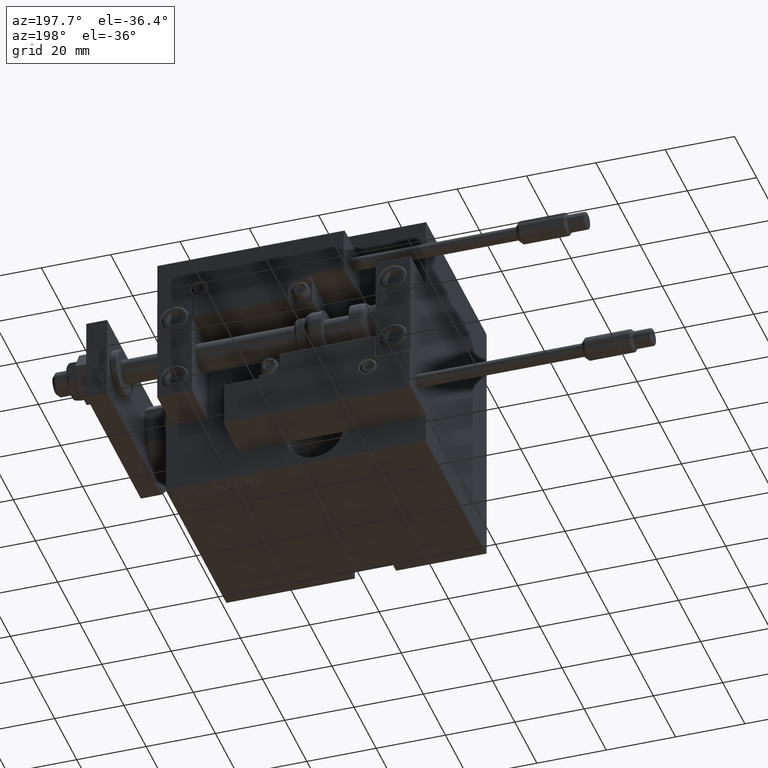
[diagram: clean part render]
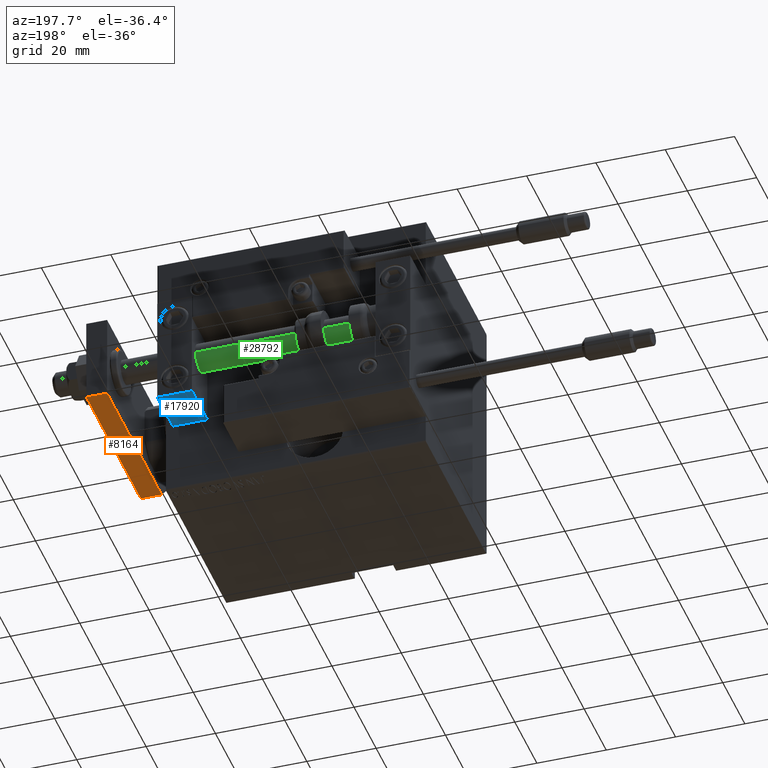
[diagram: same view with three faces highlighted in distinct colors, each labeled with its STEP entity id]
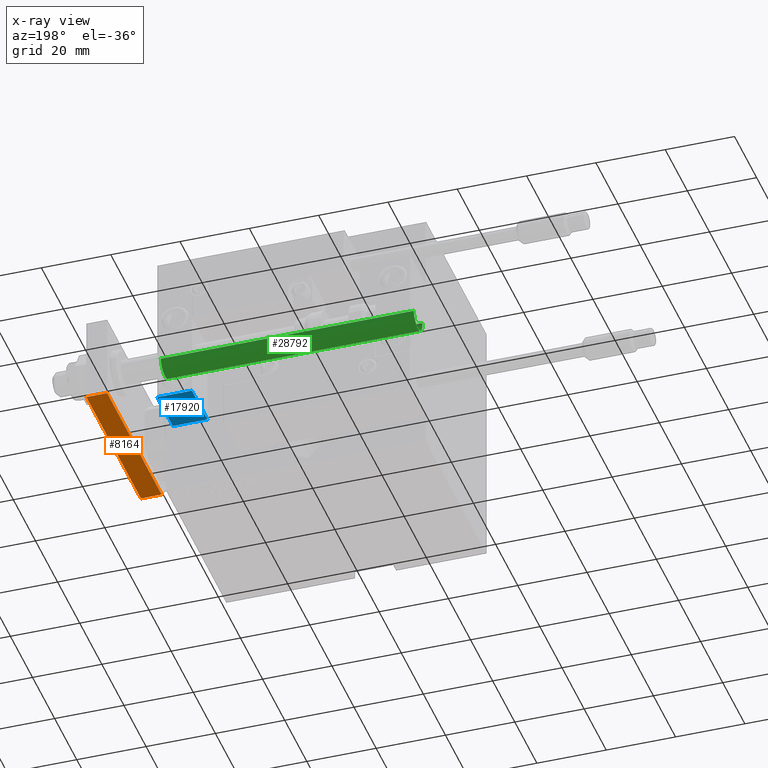
[diagram: x-ray of the same camera — body ghosted, the three highlighted faces saturated]
A machine part, auxiliary view with three faces highlighted in distinct colors.
The next image is the same camera in x-ray (body ghosted, the three faces saturated) — at least one of them is partly hidden behind the body in this view.
Their STEP definitions:

[orange] entity #8164 — the highlighted planar face has unit normal (0, -0, 1).
#1013 = EDGE_CURVE ( 'NONE', #26772, #5129, #43811, .T. ) ;
#2354 = ORIENTED_EDGE ( 'NONE', *, *, #23166, .F. ) ;
#5129 = VERTEX_POINT ( 'NONE', #35300 ) ;
#6473 = CARTESIAN_POINT ( 'NONE',  ( 12.50000000000000355, 4.814824860968089633E-32, 0.000000000000000000 ) ) ;
#8164 = ADVANCED_FACE ( 'NONE', ( #20173 ), #31723, .F. ) ;
#8354 = CARTESIAN_POINT ( 'NONE',  ( 12.50000000000000355, 4.814824860968089633E-32, 6.000000000000000000 ) ) ;
#8930 = VECTOR ( 'NONE', #47669, 1000.000000000000000 ) ;
#9680 = CARTESIAN_POINT ( 'NONE',  ( 12.50000000000000355, 4.814824860968089633E-32, 6.000000000000000000 ) ) ;
#10216 = EDGE_LOOP ( 'NONE', ( #2354, #28500, #40275, #49395 ) ) ;
#11198 = CARTESIAN_POINT ( 'NONE',  ( 12.50000000000000355, 5.659999999999991260, 6.000000000000000000 ) ) ;
#12374 = DIRECTION ( 'NONE',  ( -1.000000000000000000, -6.308085367188389994E-17, 0.000000000000000000 ) ) ;
#12998 = DIRECTION ( 'NONE',  ( 0.000000000000000000, 0.000000000000000000, -1.000000000000000000 ) ) ;
#13865 = DIRECTION ( 'NONE',  ( -0.000000000000000000, -0.000000000000000000, -1.000000000000000000 ) ) ;
#18010 = VECTOR ( 'NONE', #29113, 1000.000000000000000 ) ;
#20061 = CARTESIAN_POINT ( 'NONE',  ( 12.50000000000000000, 55.00000000000000000, 6.000000000000000000 ) ) ;
#20173 = FACE_OUTER_BOUND ( 'NONE', #10216, .T. ) ;
#20333 = CARTESIAN_POINT ( 'NONE',  ( 12.50000000000000355, 5.659999999999991260, 0.000000000000000000 ) ) ;
#23067 = AXIS2_PLACEMENT_3D ( 'NONE', #8354, #12374, #32207 ) ;
#23166 = EDGE_CURVE ( 'NONE', #37000, #26772, #48172, .T. ) ;
#24430 = CARTESIAN_POINT ( 'NONE',  ( 12.50000000000000000, 55.00000000000000000, 6.000000000000000000 ) ) ;
#26772 = VERTEX_POINT ( 'NONE', #20061 ) ;
#27622 = LINE ( 'NONE', #32360, #28338 ) ;
#28338 = VECTOR ( 'NONE', #12998, 1000.000000000000000 ) ;
#28500 = ORIENTED_EDGE ( 'NONE', *, *, #31709, .T. ) ;
#29113 = DIRECTION ( 'NONE',  ( -6.308085367188389994E-17, 1.000000000000000000, 0.000000000000000000 ) ) ;
#31709 = EDGE_CURVE ( 'NONE', #37000, #34521, #27622, .T. ) ;
#31723 = PLANE ( 'NONE',  #23067 ) ;
#32207 = DIRECTION ( 'NONE',  ( 6.308085367188389994E-17, -1.000000000000000000, 0.000000000000000000 ) ) ;
#32360 = CARTESIAN_POINT ( 'NONE',  ( 12.50000000000000355, 5.659999999999991260, 6.000000000000000000 ) ) ;
#33766 = EDGE_CURVE ( 'NONE', #34521, #5129, #33875, .T. ) ;
#33875 = LINE ( 'NONE', #6473, #18010 ) ;
#34521 = VERTEX_POINT ( 'NONE', #20333 ) ;
#35300 = CARTESIAN_POINT ( 'NONE',  ( 12.50000000000000000, 55.00000000000000000, 0.000000000000000000 ) ) ;
#37000 = VERTEX_POINT ( 'NONE', #11198 ) ;
#37021 = VECTOR ( 'NONE', #13865, 1000.000000000000000 ) ;
#40275 = ORIENTED_EDGE ( 'NONE', *, *, #33766, .T. ) ;
#43811 = LINE ( 'NONE', #24430, #37021 ) ;
#47669 = DIRECTION ( 'NONE',  ( -6.308085367188389994E-17, 1.000000000000000000, 0.000000000000000000 ) ) ;
#48172 = LINE ( 'NONE', #9680, #8930 ) ;
#49395 = ORIENTED_EDGE ( 'NONE', *, *, #1013, .F. ) ;

[blue] entity #17920 — the highlighted planar face has unit normal (0, 0, -1).
#2396 = CARTESIAN_POINT ( 'NONE',  ( 0.000000000000000000, 7.000000000000000000, -16.00000000000000711 ) ) ;
#3403 = EDGE_CURVE ( 'NONE', #19265, #14861, #34974, .T. ) ;
#4494 = DIRECTION ( 'NONE',  ( 0.000000000000000000, 0.000000000000000000, -1.000000000000000000 ) ) ;
#6174 = ORIENTED_EDGE ( 'NONE', *, *, #31217, .T. ) ;
#7529 = CARTESIAN_POINT ( 'NONE',  ( 10.00000000000000000, 7.000000000000000000, -16.00000000000000711 ) ) ;
#7944 = CARTESIAN_POINT ( 'NONE',  ( 10.00000000000000000, -7.000000000000000000, -16.00000000000000711 ) ) ;
#8065 = EDGE_CURVE ( 'NONE', #23841, #19265, #24173, .T. ) ;
#12541 = CARTESIAN_POINT ( 'NONE',  ( 10.00000000000000000, 7.000000000000000000, -16.00000000000000711 ) ) ;
#14432 = CARTESIAN_POINT ( 'NONE',  ( 10.00000000000000000, 7.000000000000000000, -16.00000000000000711 ) ) ;
#14861 = VERTEX_POINT ( 'NONE', #22642 ) ;
#16074 = PLANE ( 'NONE',  #31225 ) ;
#16434 = DIRECTION ( 'NONE',  ( -1.000000000000000000, -0.000000000000000000, -0.000000000000000000 ) ) ;
#17920 = ADVANCED_FACE ( 'NONE', ( #39455 ), #16074, .T. ) ;
#18271 = CARTESIAN_POINT ( 'NONE',  ( 0.000000000000000000, 7.000000000000000000, -16.00000000000000711 ) ) ;
#19265 = VERTEX_POINT ( 'NONE', #2396 ) ;
#22356 = LINE ( 'NONE', #7529, #23604 ) ;
#22642 = CARTESIAN_POINT ( 'NONE',  ( 0.000000000000000000, -7.000000000000000000, -16.00000000000000711 ) ) ;
#23604 = VECTOR ( 'NONE', #49293, 1000.000000000000000 ) ;
#23841 = VERTEX_POINT ( 'NONE', #14432 ) ;
#24173 = LINE ( 'NONE', #31969, #48783 ) ;
#24202 = CARTESIAN_POINT ( 'NONE',  ( 10.00000000000000000, -7.000000000000000000, -16.00000000000000711 ) ) ;
#26781 = EDGE_LOOP ( 'NONE', ( #37611, #36655, #6174, #30483 ) ) ;
#27849 = VERTEX_POINT ( 'NONE', #7944 ) ;
#27891 = DIRECTION ( 'NONE',  ( -1.000000000000000000, 0.000000000000000000, -0.000000000000000000 ) ) ;
#30101 = VECTOR ( 'NONE', #48716, 1000.000000000000000 ) ;
#30483 = ORIENTED_EDGE ( 'NONE', *, *, #40102, .T. ) ;
#31217 = EDGE_CURVE ( 'NONE', #23841, #27849, #22356, .T. ) ;
#31225 = AXIS2_PLACEMENT_3D ( 'NONE', #12541, #4494, #27891 ) ;
#31969 = CARTESIAN_POINT ( 'NONE',  ( 10.00000000000000000, 7.000000000000000000, -16.00000000000000711 ) ) ;
#33885 = VECTOR ( 'NONE', #16434, 1000.000000000000000 ) ;
#34974 = LINE ( 'NONE', #18271, #30101 ) ;
#35268 = DIRECTION ( 'NONE',  ( -1.000000000000000000, -0.000000000000000000, -0.000000000000000000 ) ) ;
#35781 = LINE ( 'NONE', #24202, #33885 ) ;
#36655 = ORIENTED_EDGE ( 'NONE', *, *, #8065, .F. ) ;
#37611 = ORIENTED_EDGE ( 'NONE', *, *, #3403, .F. ) ;
#39455 = FACE_OUTER_BOUND ( 'NONE', #26781, .T. ) ;
#40102 = EDGE_CURVE ( 'NONE', #27849, #14861, #35781, .T. ) ;
#48716 = DIRECTION ( 'NONE',  ( 0.000000000000000000, -1.000000000000000000, 0.000000000000000000 ) ) ;
#48783 = VECTOR ( 'NONE', #35268, 1000.000000000000000 ) ;
#49293 = DIRECTION ( 'NONE',  ( 0.000000000000000000, -1.000000000000000000, 0.000000000000000000 ) ) ;

[green] entity #28792 — the highlighted cylindrical surface (edge-blend (fillet) strip) has radius 4 mm, axis along (1, 0, -0).
#557 = EDGE_LOOP ( 'NONE', ( #44033, #28085, #47640, #47256 ) ) ;
#707 = VECTOR ( 'NONE', #44749, 1000.000000000000000 ) ;
#3742 = EDGE_CURVE ( 'NONE', #15360, #20887, #15725, .T. ) ;
#4074 = CARTESIAN_POINT ( 'NONE',  ( -4.000000000000000000, 0.000000000000000000, 75.00000000000000000 ) ) ;
#4418 = DIRECTION ( 'NONE',  ( -0.000000000000000000, -0.000000000000000000, 1.000000000000000000 ) ) ;
#6738 = CIRCLE ( 'NONE', #34856, 4.000000000000000000 ) ;
#15114 = EDGE_CURVE ( 'NONE', #15360, #47970, #18833, .T. ) ;
#15195 = CARTESIAN_POINT ( 'NONE',  ( 4.000000000000000000, 4.898587196589412829E-16, 75.00000000000000000 ) ) ;
#15360 = VERTEX_POINT ( 'NONE', #15195 ) ;
#15725 = CIRCLE ( 'NONE', #43009, 4.000000000000000000 ) ;
#16055 = CARTESIAN_POINT ( 'NONE',  ( 0.000000000000000000, 0.000000000000000000, 75.00000000000000000 ) ) ;
#18425 = LINE ( 'NONE', #4074, #38088 ) ;
#18833 = LINE ( 'NONE', #33912, #707 ) ;
#20887 = VERTEX_POINT ( 'NONE', #39427 ) ;
#23766 = CARTESIAN_POINT ( 'NONE',  ( 0.000000000000000000, 0.000000000000000000, 75.00000000000000000 ) ) ;
#28050 = DIRECTION ( 'NONE',  ( 1.000000000000000000, 0.000000000000000000, 0.000000000000000000 ) ) ;
#28085 = ORIENTED_EDGE ( 'NONE', *, *, #15114, .T. ) ;
#28792 = ADVANCED_FACE ( 'NONE', ( #34918 ), #31624, .T. ) ;
#29729 = EDGE_CURVE ( 'NONE', #47970, #45531, #6738, .T. ) ;
#31133 = DIRECTION ( 'NONE',  ( -0.000000000000000000, -0.000000000000000000, -1.000000000000000000 ) ) ;
#31624 = CYLINDRICAL_SURFACE ( 'NONE', #39629, 4.000000000000000000 ) ;
#33912 = CARTESIAN_POINT ( 'NONE',  ( 4.000000000000000000, 4.898587196589412829E-16, 75.00000000000000000 ) ) ;
#34308 = EDGE_CURVE ( 'NONE', #20887, #45531, #18425, .T. ) ;
#34856 = AXIS2_PLACEMENT_3D ( 'NONE', #38885, #4418, #28050 ) ;
#34918 = FACE_OUTER_BOUND ( 'NONE', #557, .T. ) ;
#35348 = DIRECTION ( 'NONE',  ( 1.000000000000000000, 0.000000000000000000, 0.000000000000000000 ) ) ;
#35899 = DIRECTION ( 'NONE',  ( -1.000000000000000000, 0.000000000000000000, 0.000000000000000000 ) ) ;
#36076 = DIRECTION ( 'NONE',  ( 0.000000000000000000, 0.000000000000000000, 1.000000000000000000 ) ) ;
#38088 = VECTOR ( 'NONE', #38294, 1000.000000000000000 ) ;
#38294 = DIRECTION ( 'NONE',  ( -0.000000000000000000, -0.000000000000000000, -1.000000000000000000 ) ) ;
#38741 = CARTESIAN_POINT ( 'NONE',  ( 4.000000000000000000, 4.898587196589412829E-16, 2.000000000000029310 ) ) ;
#38885 = CARTESIAN_POINT ( 'NONE',  ( 0.000000000000000000, 0.000000000000000000, 2.000000000000029310 ) ) ;
#39427 = CARTESIAN_POINT ( 'NONE',  ( -4.000000000000000000, 0.000000000000000000, 75.00000000000000000 ) ) ;
#39629 = AXIS2_PLACEMENT_3D ( 'NONE', #16055, #31133, #35899 ) ;
#39958 = CARTESIAN_POINT ( 'NONE',  ( -4.000000000000000000, 0.000000000000000000, 2.000000000000029310 ) ) ;
#43009 = AXIS2_PLACEMENT_3D ( 'NONE', #23766, #36076, #35348 ) ;
#44033 = ORIENTED_EDGE ( 'NONE', *, *, #3742, .F. ) ;
#44749 = DIRECTION ( 'NONE',  ( -0.000000000000000000, -0.000000000000000000, -1.000000000000000000 ) ) ;
#45531 = VERTEX_POINT ( 'NONE', #39958 ) ;
#47256 = ORIENTED_EDGE ( 'NONE', *, *, #34308, .F. ) ;
#47640 = ORIENTED_EDGE ( 'NONE', *, *, #29729, .T. ) ;
#47970 = VERTEX_POINT ( 'NONE', #38741 ) ;